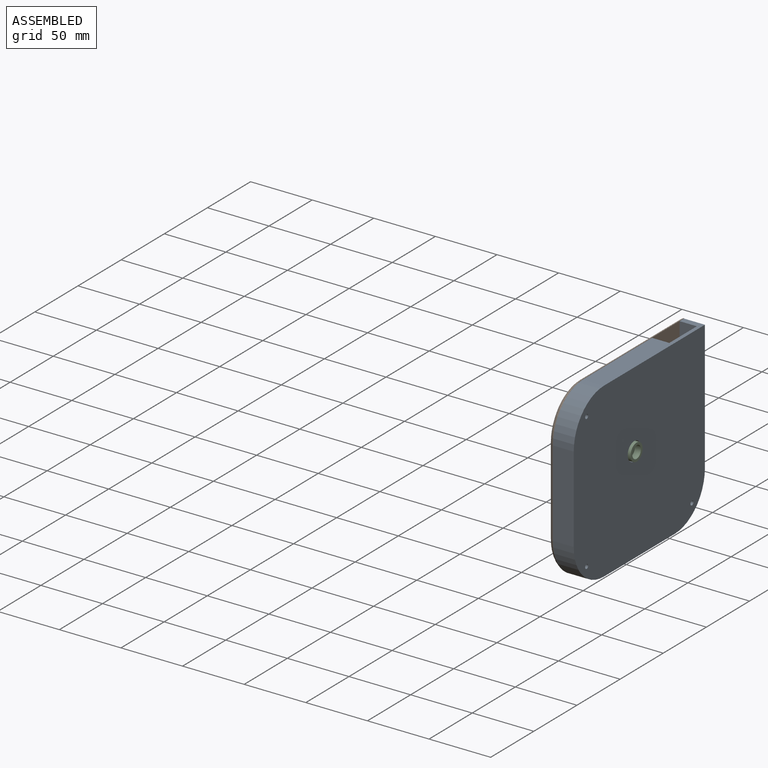
[diagram: assembled view]
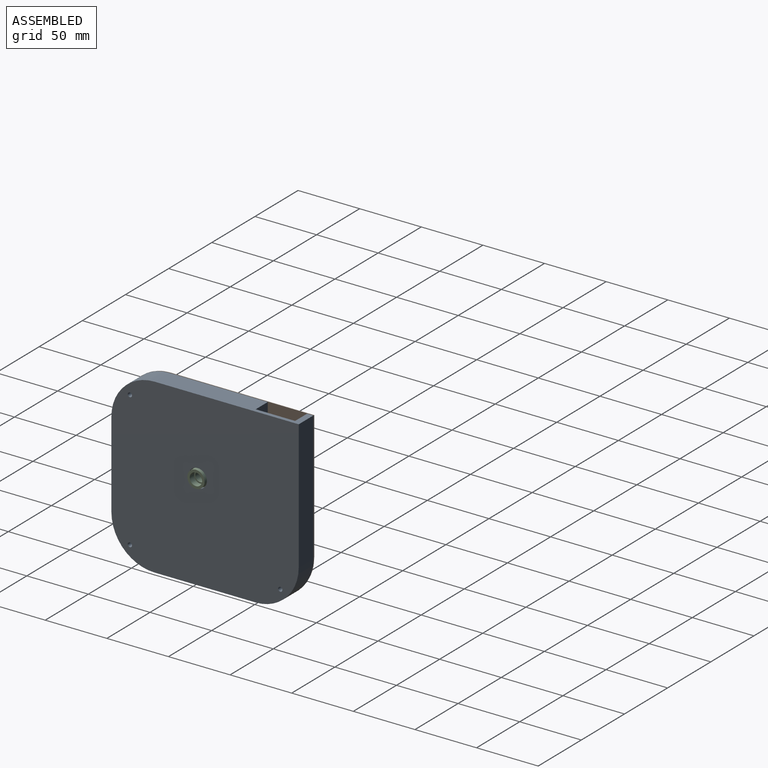
[diagram: assembled view, second angle]
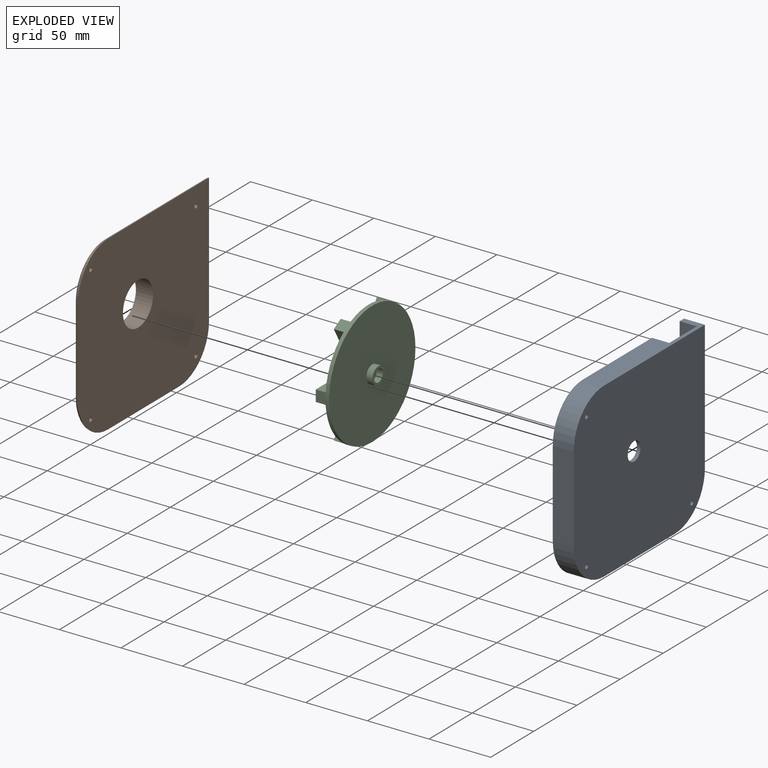
[diagram: exploded view]
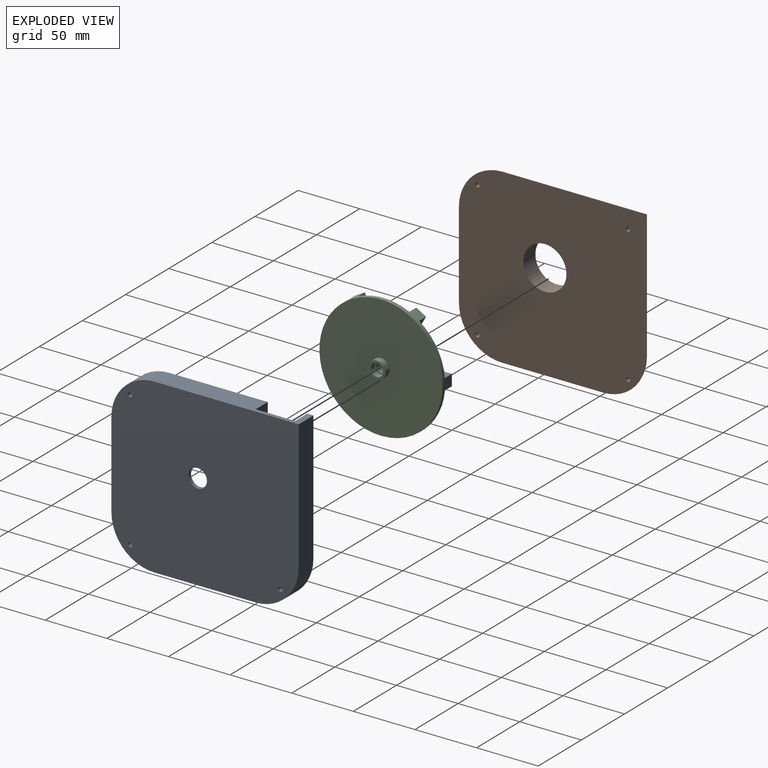
[diagram: exploded view, second angle]
ASSEMBLY  parts=3 mates=2
PART A: 18 faces, bbox 17x152x140 mm
  f0: cylinder r=59mm len=110mm, axis (-1,0,0), area 2159.8mm2, adj f1,f7,f8,f10
  f1: plane 34.34x14mm, normal (0,1,0), area 480.7mm2, adj f0,f5,f8,f10
  f2: plane 70x17mm, normal (0,-1,0), area 1190mm2, adj f8,f9,f15,f16
  f3: plane 82x17mm, normal (0,0,-1), area 1394mm2, adj f8,f9,f16,f17
  f4: plane 105x17mm, normal (0,1,0), area 1785mm2, adj f5,f8,f9,f17
  f5: plane 117x17mm, normal (0,0,1), area 1541.6mm2, adj f1,f4,f6,f8,f9,f10,f15
  f6: plane 61.5x14mm, normal (0,-1,0), area 861mm2, adj f5,f7,f8,f10
  f7: cylinder r=71mm len=142mm, axis (-1,0,0), area 3157.8mm2, adj f0,f6,f8,f10
  f8: plane 152x140mm, normal (-1,0,0), area 5191.4mm2, adj f0,f1,f2,f3,f4,f5,f6,f7
  f9: plane 152x140mm, normal (1,0,0), area 20285.8mm2, adj f2,f3,f4,f5,f11,f12,f13,f14
  f10: plane 142x135mm, normal (-1,0,0), area 15094.4mm2, adj f0,f1,f5,f6,f7,f11
  f11: cylinder r=7.5mm len=15mm, axis (-1,0,0), area 141.4mm2, adj f9,f10
  f12: cylinder r=1.75mm len=17mm, axis (-1,0,0), area 186.9mm2, adj f8,f9
  f13: cylinder r=1.75mm len=17mm, axis (-1,0,0), area 186.9mm2, adj f8,f9
  f14: cylinder r=1.75mm len=17mm, axis (-1,0,0), area 186.9mm2, adj f8,f9
  f15: cylinder r=35mm len=35mm, axis (1,0,0), area 934.6mm2, adj f2,f5,f8,f9
  f16: cylinder r=35mm len=35mm, axis (-1,0,0), area 934.6mm2, adj f2,f3,f8,f9
  f17: cylinder r=35mm len=35mm, axis (-1,0,0), area 934.6mm2, adj f3,f4,f8,f9
PART B: 16 faces, bbox 158x15.7x146 mm
  f0: plane 152x140mm, normal (0,-1,0), area 19490.7mm2, adj f2,f3,f4,f5,f6,f9,f10,f11
  f1: plane 142.2x130.2mm, normal (0,1,0), area 16636.5mm2, adj f2,f3,f4,f5,f7,f9,f10,f11
  f2: cylinder r=1.75mm len=4mm, axis (0,-1,0), area 44mm2, adj f0,f1
  f3: cylinder r=1.75mm len=4mm, axis (0,-1,0), area 44mm2, adj f0,f1
  f4: cylinder r=1.75mm len=4mm, axis (0,-1,0), area 44mm2, adj f0,f1
  f5: cylinder r=1.75mm len=4mm, axis (0,-1,0), area 44mm2, adj f0,f1
  f6: cylinder r=17.5mm len=35mm, axis (0,1,0), area 1539.4mm2, adj f0,f8
  f7: cylinder r=20mm len=40mm, axis (0,-1,0), area 712.5mm2, adj f1,f8
  f8: torus R=15mm, axis (0,1,0), area 629.5mm2, adj f6,f7
  f9: cylinder r=5mm len=82mm, axis (-1,0,0), area 561.5mm2, adj f0,f1,f10,f11
  f10: torus R=30.1mm, axis (0,1,0), area 355.2mm2, adj f0,f1,f9,f12
  f11: torus R=30.1mm, axis (0,1,0), area 355.2mm2, adj f0,f1,f9,f13
  f12: cylinder r=5mm len=70mm, axis (0,0,1), area 479.3mm2, adj f0,f1,f10,f14
  f13: cylinder r=5mm len=105mm, axis (0,0,1), area 705.4mm2, adj f0,f1,f11,f15
  f14: torus R=30.1mm, axis (0,1,0), area 355.2mm2, adj f0,f1,f12,f15
  f15: cylinder r=5mm len=117mm, axis (-1,0,0), area 787.6mm2, adj f0,f1,f13,f14
PART C: 48 faces, bbox 100x18x100 mm
  f0: plane 10x10mm, normal (0,1,0), area 38.1mm2, adj f42,f45,f46
  f1: plane 40.83x28.86mm, normal (0,-1,0), area 376mm2, adj f30,f31,f32,f39
  f2: plane 40.83x28.86mm, normal (0,-1,0), area 376mm2, adj f33,f34,f35,f39
  f3: plane 41.85x9.17mm, normal (0,-1,0), area 376mm2, adj f20,f36,f37,f39
  f4: plane 40.83x28.86mm, normal (0,-1,0), area 376mm2, adj f21,f22,f23,f39
  f5: plane 40.83x28.86mm, normal (0,-1,0), area 376mm2, adj f24,f25,f26,f39
  f6: plane 41.85x36.25mm, normal (0,-1,0), area 887.8mm2, adj f17,f20,f21
  f7: plane 9.17x0.21mm, normal (0,-1,0), area 1.3mm2, adj f17,f37
  f8: plane 7.94x4.58mm, normal (0,-1,0), area 1.3mm2, adj f17,f34
  f9: plane 41.85x36.25mm, normal (0,-1,0), area 887.8mm2, adj f17,f35,f36
  f10: plane 7.94x4.58mm, normal (0,-1,0), area 1.3mm2, adj f17,f31
  f11: plane 41.85x40.84mm, normal (0,-1,0), area 887.8mm2, adj f17,f32,f33
  f12: plane 9.17x0.21mm, normal (0,-1,0), area 1.3mm2, adj f17,f28
  f13: plane 41.85x36.25mm, normal (0,-1,0), area 887.8mm2, adj f17,f29,f30
  f14: plane 7.94x4.58mm, normal (0,-1,0), area 1.3mm2, adj f17,f25
  f15: plane 41.85x36.25mm, normal (0,-1,0), area 887.8mm2, adj f17,f26,f27
  f16: plane 7.94x4.58mm, normal (0,-1,0), area 1.3mm2, adj f17,f22
  f17: cylinder r=50mm len=100mm, axis (0,1,0), area 942.5mm2, adj f6,f7,f8,f9,f10,f11,f12,f13
  f18: plane 41.85x40.84mm, normal (0,-1,0), area 887.8mm2, adj f17,f23,f24
  f19: plane 100x100mm, normal (0,1,0), area 7700mm2, adj f17,f43
  f20: plane 41.85x8mm, normal (-1,0,0), area 334.8mm2, adj f3,f6,f21,f37
  f21: plane 36.25x20.93mm, normal (0.5,0,0.87), area 334.8mm2, adj f4,f6,f20,f22
  f22: plane 8x7.94mm, normal (-0.87,0,0.5), area 73.3mm2, adj f4,f16,f21,f23
  f23: plane 36.25x20.93mm, normal (-0.5,0,-0.87), area 334.8mm2, adj f4,f18,f22,f24
  f24: plane 36.25x20.93mm, normal (-0.5,0,0.87), area 334.8mm2, adj f5,f18,f23,f25
  f25: plane 8x7.94mm, normal (-0.87,0,-0.5), area 73.3mm2, adj f5,f14,f24,f26
  f26: plane 36.25x20.93mm, normal (0.5,0,-0.87), area 334.8mm2, adj f5,f15,f25,f27
  f27: plane 41.85x8mm, normal (-1,0,0), area 334.8mm2, adj f15,f26,f28,f38
  f28: plane 9.17x8mm, normal (0,0,-1), area 73.3mm2, adj f12,f27,f29,f38
  f29: plane 41.85x8mm, normal (1,0,0), area 334.8mm2, adj f13,f28,f30,f38
  f30: plane 36.25x20.93mm, normal (-0.5,0,-0.87), area 334.8mm2, adj f1,f13,f29,f31
  f31: plane 8x7.94mm, normal (0.87,0,-0.5), area 73.3mm2, adj f1,f10,f30,f32
  f32: plane 36.25x20.93mm, normal (0.5,0,0.87), area 334.8mm2, adj f1,f11,f31,f33
  f33: plane 36.25x20.93mm, normal (0.5,0,-0.87), area 334.8mm2, adj f2,f11,f32,f34
  f34: plane 8x7.94mm, normal (0.87,0,0.5), area 73.3mm2, adj f2,f8,f33,f35
  f35: plane 36.25x20.93mm, normal (-0.5,0,0.87), area 334.8mm2, adj f2,f9,f34,f36
  f36: plane 41.85x8mm, normal (1,0,0), area 334.8mm2, adj f3,f9,f35,f37
  f37: plane 9.17x8mm, normal (0,0,1), area 73.3mm2, adj f3,f7,f20,f36
  f38: plane 41.85x9.17mm, normal (0,-1,0), area 376mm2, adj f27,f28,f29,f39
  f39: cylinder r=9.17mm len=18.33mm, axis (0,1,0), area 57.6mm2, adj f1,f2,f3,f4,f5,f38,f41
  f40: plane 16.33x16.33mm, normal (0,-1,0), area 209.4mm2, adj f41
  f41: torus R=8.17mm, axis (0,-1,0), area 86.9mm2, adj f39,f40
  f42: cylinder r=5mm len=10mm, axis (0,-1,0), area 157.1mm2, adj f0,f44
  f43: cylinder r=7mm len=14mm, axis (0,-1,0), area 219.9mm2, adj f19,f44
  f44: plane 14x14mm, normal (0,1,0), area 75.4mm2, adj f42,f43
  f45: cylinder r=4mm len=8mm, axis (0,1,0), area 134mm2, adj f0,f46,f47
  f46: plane 8x6.93mm, normal (0,0,1), area 55.4mm2, adj f0,f45,f47
  f47: plane 8x6mm, normal (0,1,0), area 40.4mm2, adj f45,f46
PLACE A t=(-14.45,55.48,-30.03)mm
PLACE B rot(axis=(0,0,1),90deg) t=(-18.45,61.65,-38.32)mm
PLACE C rot(axis=(0.58,0.58,-0.58),120deg) t=(-0.45,55.48,-30.03)mm
MATE planar B.f0 <-> A.f8  axis (1,0,0) through (-14.45,62.87,-37.92)mm
MATE revolute C.f43 <-> A.f11  axis (-1,0,0) through (-0.45,55.48,-30.03)mm
